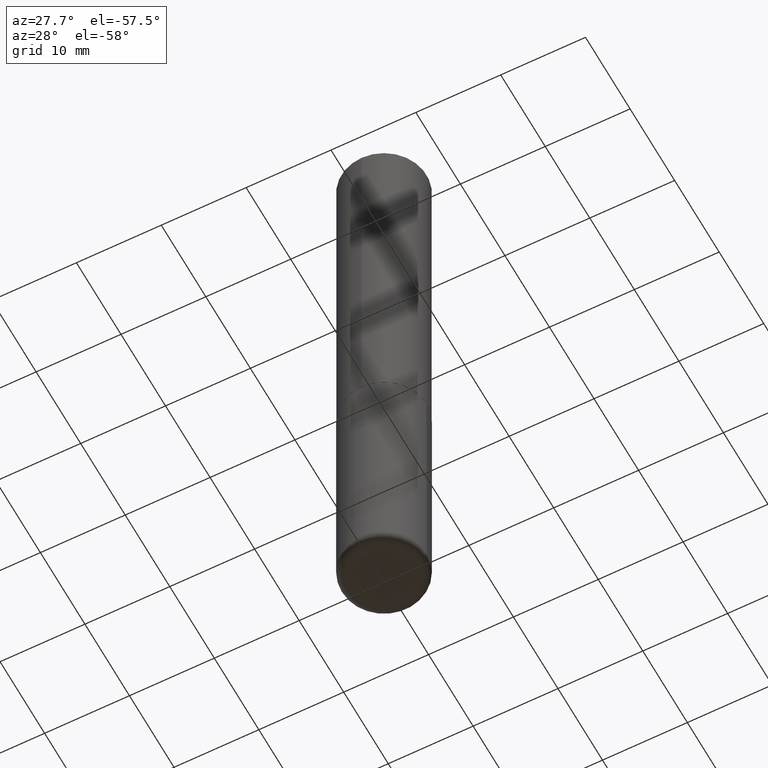
[diagram: clean part render]
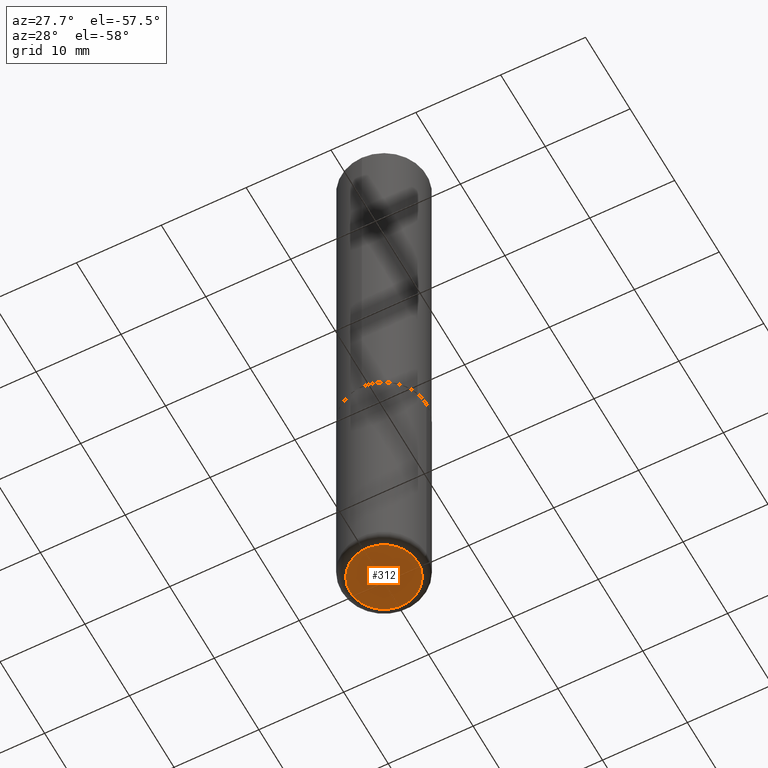
[diagram: same view with one face highlighted and labeled with its STEP entity id]
A machine part, auxiliary view. The second image highlights one B-rep face of the part: STEP entity #312.
In plain terms, the highlighted planar face has unit normal (0, -0, -1).
Its self-contained STEP definition (entity closure, byte-faithful):
#17 = EDGE_LOOP ( 'NONE', ( #216, #52 ) ) ;
#35 = CARTESIAN_POINT ( 'NONE',  ( 7.220980290903470182E-29, -1.030964609733603853E-14, -2.952799999999999869 ) ) ;
#52 = ORIENTED_EDGE ( 'NONE', *, *, #396, .F. ) ;
#54 = CIRCLE ( 'NONE', #371, 0.1574500000000000066 ) ;
#98 = CARTESIAN_POINT ( 'NONE',  ( -0.1574500000000000066, -8.982137458561812020E-15, -2.952799999999999869 ) ) ;
#107 = CIRCLE ( 'NONE', #384, 0.1574500000000000066 ) ;
#111 = DIRECTION ( 'NONE',  ( 1.000000000000000000, -6.982962677686265922E-15, 0.000000000000000000 ) ) ;
#137 = PLANE ( 'NONE',  #242 ) ;
#140 = DIRECTION ( 'NONE',  ( 2.438088387897960049E-29, -3.491481338843145188E-15, -1.000000000000000000 ) ) ;
#176 = VERTEX_POINT ( 'NONE', #302 ) ;
#216 = ORIENTED_EDGE ( 'NONE', *, *, #243, .F. ) ;
#238 = FACE_OUTER_BOUND ( 'NONE', #17, .T. ) ;
#242 = AXIS2_PLACEMENT_3D ( 'NONE', #304, #140, #337 ) ;
#243 = EDGE_CURVE ( 'NONE', #176, #374, #107, .T. ) ;
#302 = CARTESIAN_POINT ( 'NONE',  ( 0.1574500000000000066, -1.140911357093774171E-14, -2.952799999999999869 ) ) ;
#304 = CARTESIAN_POINT ( 'NONE',  ( 7.220980290903470182E-29, -1.030964609733603853E-14, -2.952799999999999869 ) ) ;
#312 = ADVANCED_FACE ( 'NONE', ( #238 ), #137, .T. ) ;
#337 = DIRECTION ( 'NONE',  ( -1.000000000000000000, 6.982962677686265922E-15, -4.876176775795935793E-29 ) ) ;
#361 = DIRECTION ( 'NONE',  ( 1.000000000000000000, -6.982962677686265922E-15, 0.000000000000000000 ) ) ;
#369 = DIRECTION ( 'NONE',  ( -2.445468806185136597E-29, 3.491481338843145583E-15, 1.000000000000000000 ) ) ;
#371 = AXIS2_PLACEMENT_3D ( 'NONE', #35, #369, #361 ) ;
#374 = VERTEX_POINT ( 'NONE', #98 ) ;
#384 = AXIS2_PLACEMENT_3D ( 'NONE', #403, #405, #111 ) ;
#396 = EDGE_CURVE ( 'NONE', #374, #176, #54, .T. ) ;
#403 = CARTESIAN_POINT ( 'NONE',  ( 7.220980290903470182E-29, -1.030964609733603853E-14, -2.952799999999999869 ) ) ;
#405 = DIRECTION ( 'NONE',  ( -2.445468806185136597E-29, 3.491481338843145583E-15, 1.000000000000000000 ) ) ;